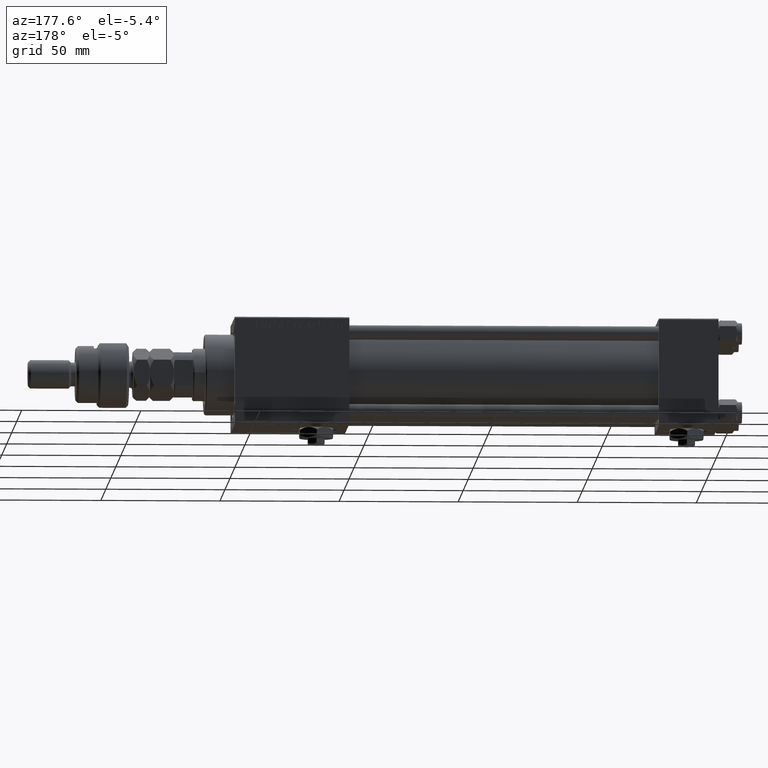
[diagram: clean part render]
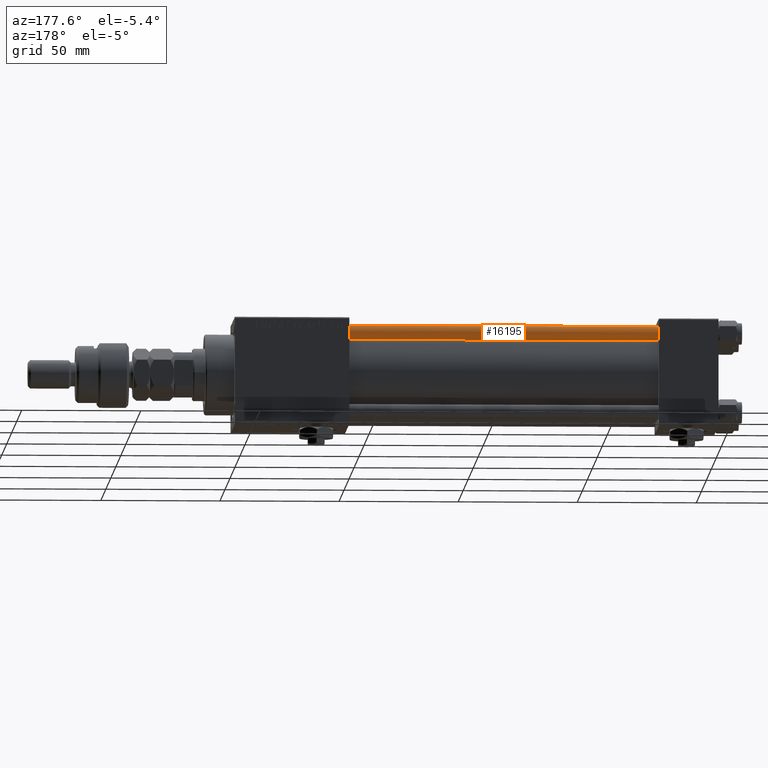
[diagram: same view with one face highlighted and labeled with its STEP entity id]
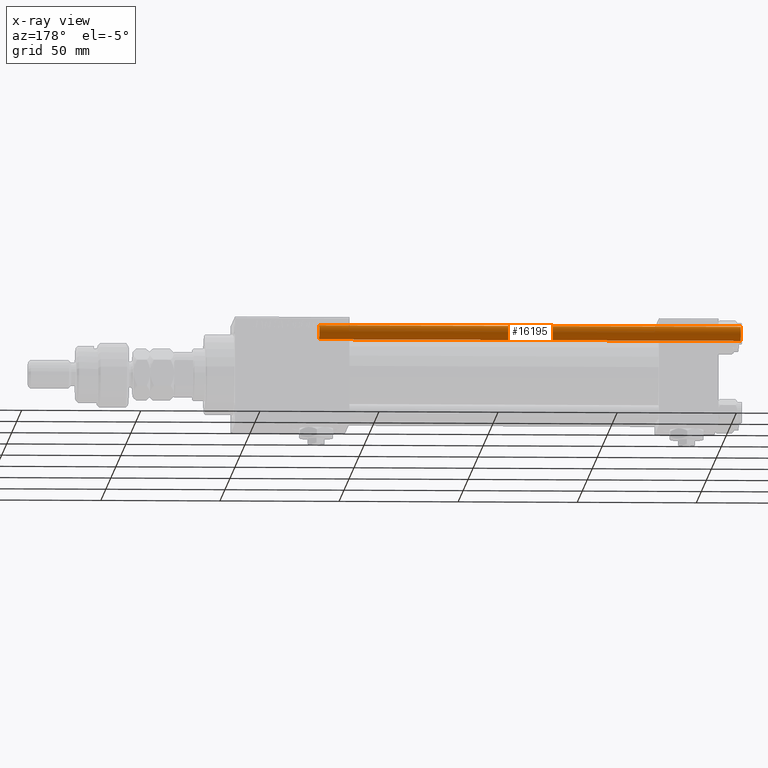
[diagram: x-ray of the same camera — body ghosted, the highlighted face saturated]
A machine part, auxiliary view. The second image highlights one B-rep face of the part: STEP entity #16195.
The next image is the same camera in x-ray: the body ghosted, the highlighted face saturated — about 0% of this face is hidden behind the body in this view.
In plain terms, the highlighted cylindrical surface (edge-blend (fillet) strip) has radius 3 mm, axis along (-1, 0, 0).
Its self-contained STEP definition (entity closure, byte-faithful):
#2142 = VERTEX_POINT ( 'NONE', #46220 ) ;
#4645 = VERTEX_POINT ( 'NONE', #45173 ) ;
#4710 = EDGE_CURVE ( 'NONE', #2142, #4645, #43173, .T. ) ;
#8367 = DIRECTION ( 'NONE',  ( -1.000000000000000000, 0.000000000000000000, 0.000000000000000000 ) ) ;
#10161 = EDGE_CURVE ( 'NONE', #49380, #2142, #48350, .T. ) ;
#11001 = CARTESIAN_POINT ( 'NONE',  ( -3.000000000000000444, 0.000000000000000000, 177.5000000000000000 ) ) ;
#12163 = CIRCLE ( 'NONE', #14059, 3.000000000000000444 ) ;
#12797 = CARTESIAN_POINT ( 'NONE',  ( 3.000000000000000444, 3.673940397442060361E-16, 178.0000000000000000 ) ) ;
#13062 = EDGE_CURVE ( 'NONE', #49380, #39374, #13685, .T. ) ;
#13685 = LINE ( 'NONE', #30720, #38779 ) ;
#14059 = AXIS2_PLACEMENT_3D ( 'NONE', #29969, #25786, #42496 ) ;
#14865 = AXIS2_PLACEMENT_3D ( 'NONE', #33207, #51043, #8367 ) ;
#16195 = ADVANCED_FACE ( 'NONE', ( #16196 ), #20664, .T. ) ;
#16196 = FACE_OUTER_BOUND ( 'NONE', #33051, .T. ) ;
#18958 = EDGE_CURVE ( 'NONE', #4645, #39374, #12163, .T. ) ;
#20664 = CYLINDRICAL_SURFACE ( 'NONE', #14865, 3.000000000000000444 ) ;
#22322 = ORIENTED_EDGE ( 'NONE', *, *, #18958, .T. ) ;
#25206 = AXIS2_PLACEMENT_3D ( 'NONE', #28636, #50649, #53738 ) ;
#25786 = DIRECTION ( 'NONE',  ( -0.000000000000000000, -0.000000000000000000, 1.000000000000000000 ) ) ;
#28636 = CARTESIAN_POINT ( 'NONE',  ( 0.000000000000000000, 0.000000000000000000, 177.5000000000000000 ) ) ;
#29375 = ORIENTED_EDGE ( 'NONE', *, *, #13062, .F. ) ;
#29969 = CARTESIAN_POINT ( 'NONE',  ( 0.000000000000000000, 0.000000000000000000, 0.5000000000000281997 ) ) ;
#30720 = CARTESIAN_POINT ( 'NONE',  ( -3.000000000000000444, 0.000000000000000000, 178.0000000000000000 ) ) ;
#32362 = CARTESIAN_POINT ( 'NONE',  ( -3.000000000000000444, 0.000000000000000000, 0.5000000000000281997 ) ) ;
#33051 = EDGE_LOOP ( 'NONE', ( #43342, #37960, #22322, #29375 ) ) ;
#33207 = CARTESIAN_POINT ( 'NONE',  ( 0.000000000000000000, 0.000000000000000000, 178.0000000000000000 ) ) ;
#37960 = ORIENTED_EDGE ( 'NONE', *, *, #4710, .T. ) ;
#38779 = VECTOR ( 'NONE', #47714, 1000.000000000000000 ) ;
#39374 = VERTEX_POINT ( 'NONE', #32362 ) ;
#40258 = VECTOR ( 'NONE', #54931, 1000.000000000000000 ) ;
#42496 = DIRECTION ( 'NONE',  ( 1.000000000000000000, 0.000000000000000000, 0.000000000000000000 ) ) ;
#43173 = LINE ( 'NONE', #12797, #40258 ) ;
#43342 = ORIENTED_EDGE ( 'NONE', *, *, #10161, .T. ) ;
#45173 = CARTESIAN_POINT ( 'NONE',  ( 3.000000000000000444, 3.673940397442060361E-16, 0.5000000000000281997 ) ) ;
#46220 = CARTESIAN_POINT ( 'NONE',  ( 3.000000000000000444, 3.673940397442060361E-16, 177.5000000000000000 ) ) ;
#47714 = DIRECTION ( 'NONE',  ( -0.000000000000000000, -0.000000000000000000, -1.000000000000000000 ) ) ;
#48350 = CIRCLE ( 'NONE', #25206, 3.000000000000000444 ) ;
#49380 = VERTEX_POINT ( 'NONE', #11001 ) ;
#50649 = DIRECTION ( 'NONE',  ( 0.000000000000000000, 0.000000000000000000, -1.000000000000000000 ) ) ;
#51043 = DIRECTION ( 'NONE',  ( -0.000000000000000000, -0.000000000000000000, -1.000000000000000000 ) ) ;
#53738 = DIRECTION ( 'NONE',  ( 1.000000000000000000, 0.000000000000000000, 0.000000000000000000 ) ) ;
#54931 = DIRECTION ( 'NONE',  ( -0.000000000000000000, -0.000000000000000000, -1.000000000000000000 ) ) ;